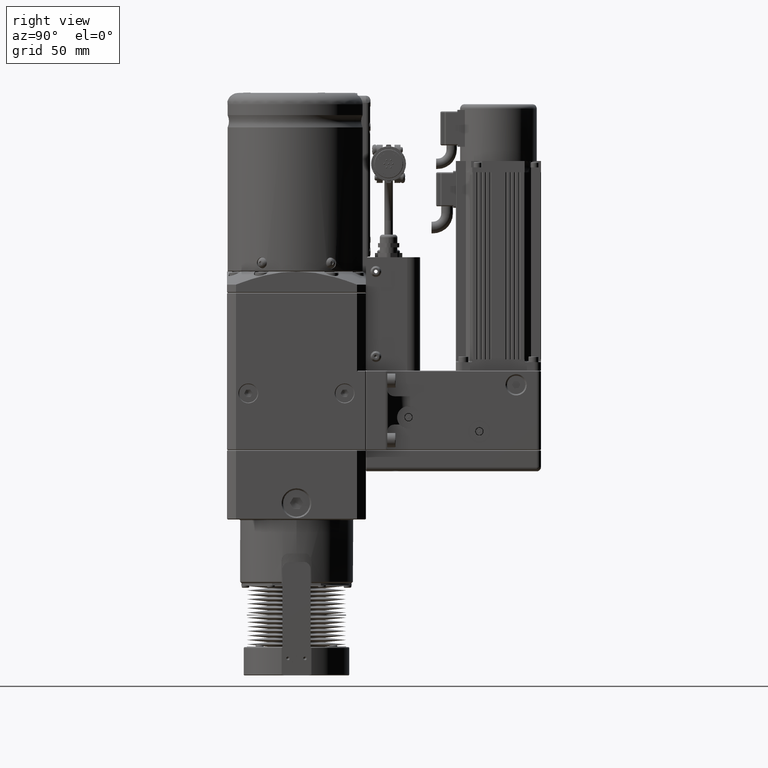
[diagram: clean part render]
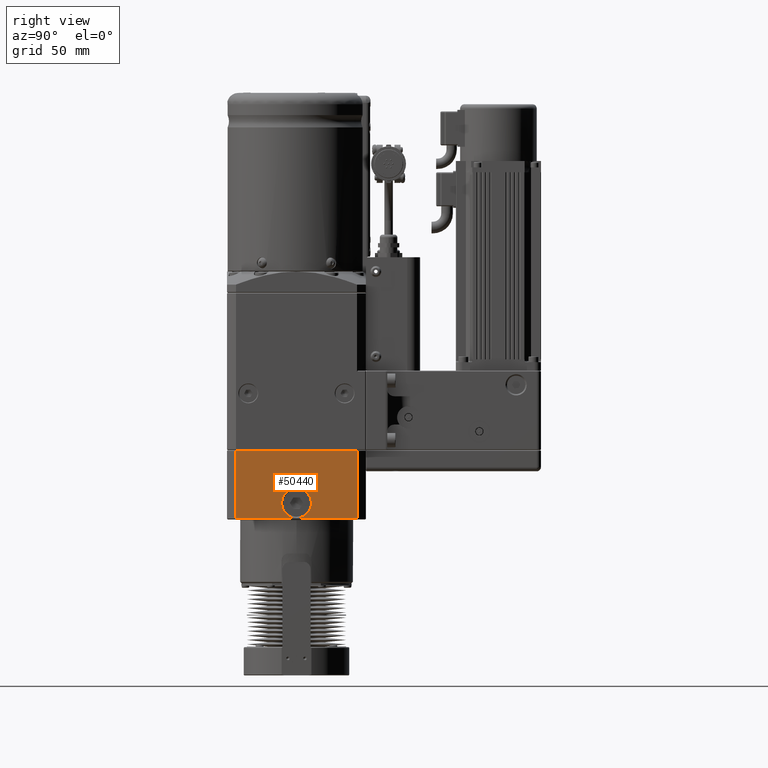
[diagram: same view with one face highlighted and labeled with its STEP entity id]
A machine part, right view. The second image highlights one B-rep face of the part: STEP entity #50440.
In plain terms, the highlighted planar face has unit normal (1, -0, -0).
Its self-contained STEP definition (entity closure, byte-faithful):
#2484=FACE_BOUND('',#7128,.T.);
#4066=FACE_OUTER_BOUND('',#7127,.T.);
#7127=EDGE_LOOP('',(#39023,#39024,#39025,#39026));
#7128=EDGE_LOOP('',(#39027,#39028));
#11068=LINE('',#81264,#15290);
#11071=LINE('',#81290,#15293);
#11077=LINE('',#81344,#15299);
#11078=LINE('',#81346,#15300);
#15290=VECTOR('',#64010,10.);
#15293=VECTOR('',#64027,10.);
#15299=VECTOR('',#64063,10.);
#15300=VECTOR('',#64066,10.);
#18423=CIRCLE('',#54488,10.5);
#18424=CIRCLE('',#54489,10.5);
#22002=VERTEX_POINT('',#81254);
#22004=VERTEX_POINT('',#81263);
#22007=VERTEX_POINT('',#81284);
#22008=VERTEX_POINT('',#81289);
#22014=VERTEX_POINT('',#81347);
#22015=VERTEX_POINT('',#81348);
#28205=EDGE_CURVE('',#22002,#22004,#11068,.T.);
#28214=EDGE_CURVE('',#22007,#22008,#11071,.T.);
#28232=EDGE_CURVE('',#22008,#22002,#11077,.T.);
#28233=EDGE_CURVE('',#22004,#22007,#11078,.T.);
#28234=EDGE_CURVE('',#22014,#22015,#18423,.T.);
#28235=EDGE_CURVE('',#22015,#22014,#18424,.T.);
#39023=ORIENTED_EDGE('',*,*,#28205,.F.);
#39024=ORIENTED_EDGE('',*,*,#28232,.F.);
#39025=ORIENTED_EDGE('',*,*,#28214,.F.);
#39026=ORIENTED_EDGE('',*,*,#28233,.F.);
#39027=ORIENTED_EDGE('',*,*,#28234,.T.);
#39028=ORIENTED_EDGE('',*,*,#28235,.T.);
#48316=PLANE('',#54487);
#50440=ADVANCED_FACE('',(#4066,#2484),#48316,.T.);
#54487=AXIS2_PLACEMENT_3D('',#81345,#64064,#64065);
#54488=AXIS2_PLACEMENT_3D('',#81349,#64067,#64068);
#54489=AXIS2_PLACEMENT_3D('',#81350,#64069,#64070);
#64010=DIRECTION('',(5.20417042792964E-18,1.,-2.36131800560411E-30));
#64027=DIRECTION('',(-5.20417042792964E-18,-1.,2.36131800560411E-30));
#64063=DIRECTION('',(4.48634226766827E-46,2.36131800560411E-30,1.));
#64064=DIRECTION('center_axis',(1.,-5.20417042792964E-18,-3.50324616081204E-46));
#64065=DIRECTION('ref_axis',(-5.20417042792964E-18,-1.,2.36131800560411E-30));
#64066=DIRECTION('',(-4.48634226766827E-46,-2.36131800560411E-30,-1.));
#64067=DIRECTION('center_axis',(-1.,5.20417042792964E-18,3.50324616081204E-46));
#64068=DIRECTION('ref_axis',(4.48634226766827E-46,2.36131800560411E-30,
1.));
#64069=DIRECTION('center_axis',(-1.,5.20417042792964E-18,3.50324616081204E-46));
#64070=DIRECTION('ref_axis',(4.48634226766827E-46,2.36131800560411E-30,
1.));
#81254=CARTESIAN_POINT('',(49.,-42.7083130081252,93.5000000000001));
#81263=CARTESIAN_POINT('',(49.,42.7083130081252,93.5000000000001));
#81264=CARTESIAN_POINT('',(49.,24.5,93.5000000000001));
#81284=CARTESIAN_POINT('',(49.,42.7083130081252,45.5000000000001));
#81289=CARTESIAN_POINT('',(49.,-42.7083130081252,45.5));
#81290=CARTESIAN_POINT('',(49.,24.5,45.5000000000001));
#81344=CARTESIAN_POINT('',(49.,-42.7083130081252,69.5000000000001));
#81345=CARTESIAN_POINT('Origin',(49.,49.,94.0000000000001));
#81346=CARTESIAN_POINT('',(49.,42.7083130081252,69.5000000000001));
#81347=CARTESIAN_POINT('',(49.,-1.21371732058807E-14,67.0000000000001));
#81348=CARTESIAN_POINT('',(49.,-1.0851294066776E-14,46.0000000000001));
#81349=CARTESIAN_POINT('Origin',(49.,-1.21371732058807E-14,56.5000000000001));
#81350=CARTESIAN_POINT('Origin',(49.,-1.21371732058807E-14,56.5000000000001));